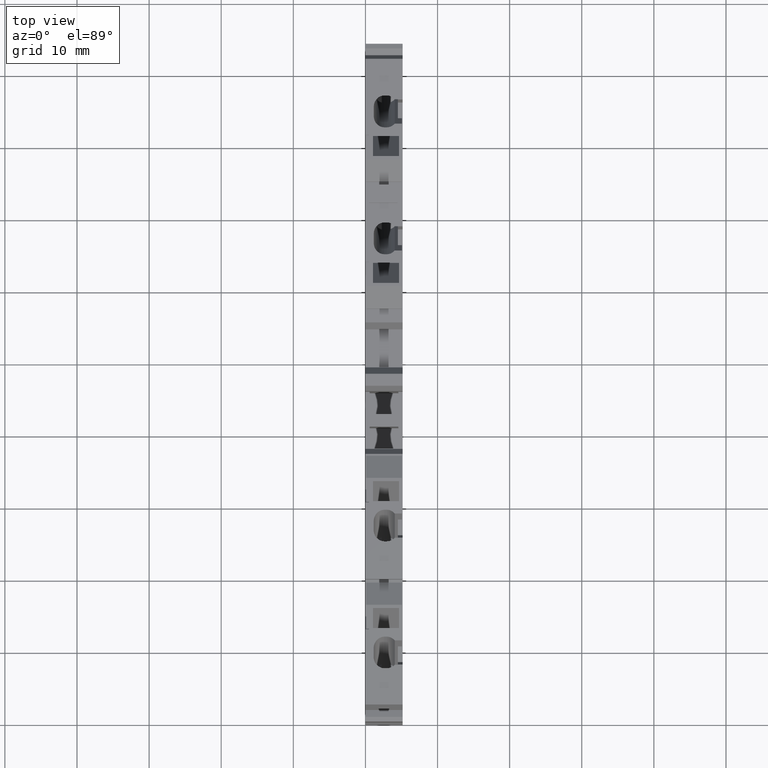
[diagram: clean part render]
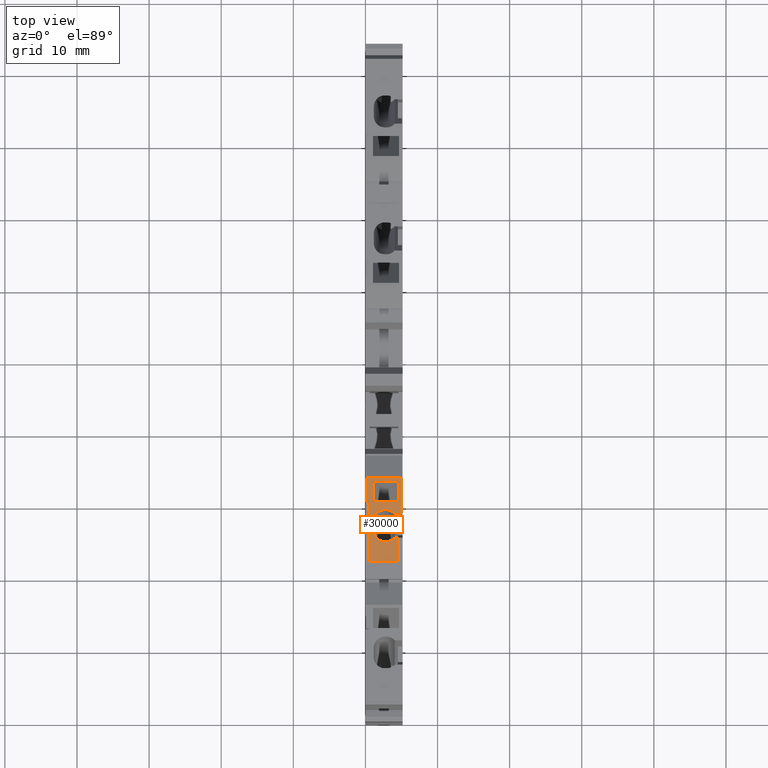
[diagram: same view with one face highlighted and labeled with its STEP entity id]
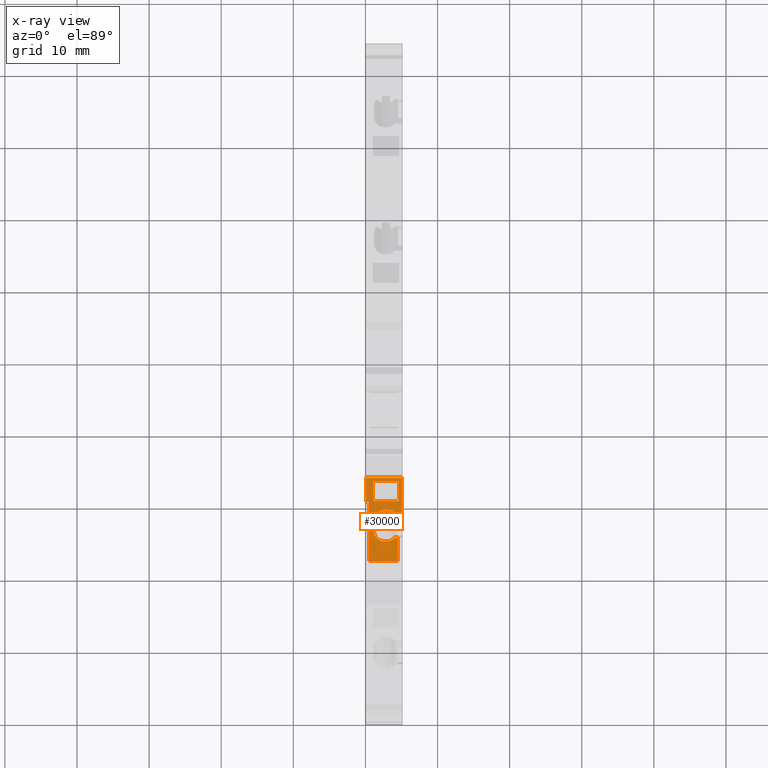
[diagram: x-ray of the same camera — body ghosted, the highlighted face saturated]
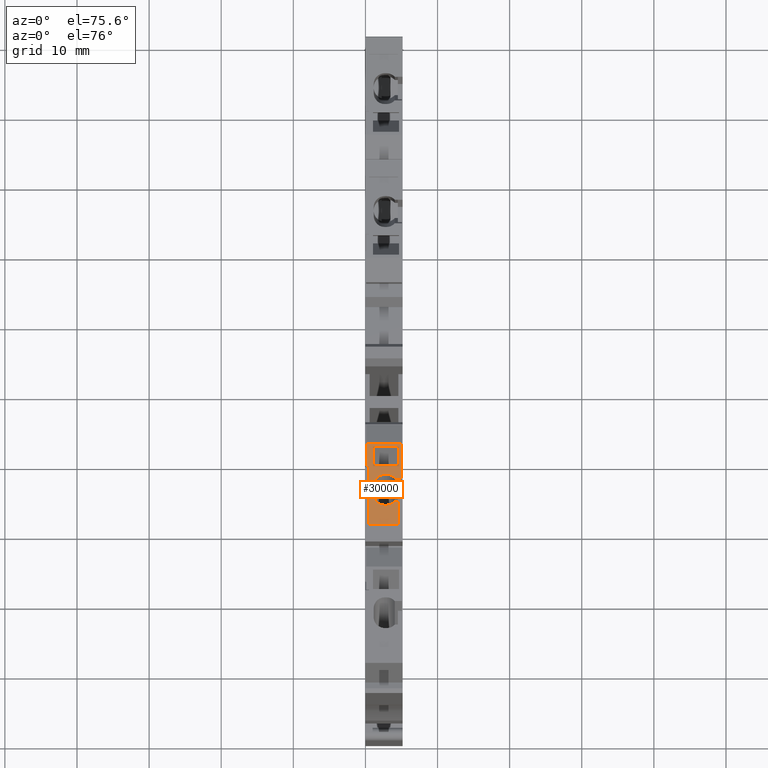
[diagram: same view with one face highlighted and labeled with its STEP entity id]
A machine part, top view. The second image highlights one B-rep face of the part: STEP entity #30000.
The next image is the same camera in x-ray: the body ghosted, the highlighted face saturated — about 0% of this face is hidden behind the body in this view.
A second angle (auxiliary view) of the same face is appended — the face is thin or edge-on in the first view.
In plain terms, the highlighted planar face has unit normal (0, 0, 1).
Its self-contained STEP definition (entity closure, byte-faithful):
#26140=CARTESIAN_POINT('',(11.8583955673308,33.1746136569313,
-4.00000000006407));
#26150=VERTEX_POINT('',#26140);
#26180=CARTESIAN_POINT('',(-1.13147846149601E-12,31.718585764184,
-4.00000000004202));
#26190=DIRECTION('',(-0.992546151641327,-0.12186934340511,
1.84592228757605E-12));
#26200=VECTOR('',#26190,1.);
#26210=LINE('',#26180,#26200);
#26220=CARTESIAN_POINT('',(13.1425937923009,33.3322933720965,
-4.00000000006646));
#26230=VERTEX_POINT('',#26220);
#26240=EDGE_CURVE('',#26230,#26150,#26210,.T.);
#27660=CARTESIAN_POINT('',(14.1862185765723,33.4604343829806,
-0.100000000070755));
#27670=VERTEX_POINT('',#27660);
#27700=CARTESIAN_POINT('',(-1.22843139665029E-12,31.718585764184,
-0.100000000071112));
#27710=DIRECTION('',(-0.992546151641327,-0.12186934340511,
-2.50394313100733E-14));
#27720=VECTOR('',#27710,1.);
#27730=LINE('',#27700,#27720);
#27740=CARTESIAN_POINT('',(19.0899778371893,34.0625403105689,
-0.100000000070631));
#27750=VERTEX_POINT('',#27740);
#27760=EDGE_CURVE('',#27750,#27670,#27730,.T.);
#28020=CARTESIAN_POINT('',(19.0899778371892,34.0625403105688,
-7.06051135417744E-11));
#28030=DIRECTION('',(4.27438783378781E-13,5.23510771281308E-14,-1.));
#28040=VECTOR('',#28030,1.);
#28050=LINE('',#28020,#28040);
#28060=CARTESIAN_POINT('',(19.0899778371914,34.0625403105691,
-5.05000000007063));
#28070=VERTEX_POINT('',#28060);
#28080=EDGE_CURVE('',#27750,#28070,#28050,.T.);
#28330=CARTESIAN_POINT('',(0.00609346716915437,31.7193339478749,
-5.05000000007111));
#28340=DIRECTION('',(0.992546151641327,0.12186934340511,
2.50394313100733E-14));
#28350=VECTOR('',#28340,1.);
#28360=LINE('',#28330,#28350);
#28370=CARTESIAN_POINT('',(15.7882426796901,33.6571382090378,
-5.05000000007072));
#28380=VERTEX_POINT('',#28370);
#28390=EDGE_CURVE('',#28380,#28070,#28360,.T.);
#28590=CARTESIAN_POINT('',(6.85214317504293,32.5599231551753,
-2.30546382926586));
#28600=DIRECTION('',(-0.12186934340511,0.992546151641327,
-1.30823738446753E-16));
#28610=DIRECTION('',(-0.992546151641327,-0.12186934340511,
-2.50394313100733E-14));
#28620=AXIS2_PLACEMENT_3D('',#28590,#28600,#28610);
#28630=PLANE('',#28620);
#28640=CARTESIAN_POINT('',(-1.1289924887993E-12,31.718585764184,
-4.10000000005905));
#28650=DIRECTION('',(-0.992546151641327,-0.12186934340511,
1.64602663199229E-12));
#28660=VECTOR('',#28650,1.);
#28670=LINE('',#28640,#28660);
#28680=CARTESIAN_POINT('',(18.6491029754979,34.008407684263,
-4.10000000008998));
#28690=VERTEX_POINT('',#28680);
#28700=CARTESIAN_POINT('',(15.889379965925,33.669556306319,
-4.1000000000854));
#28710=VERTEX_POINT('',#28700);
#28720=EDGE_CURVE('',#28690,#28710,#28670,.T.);
#28730=ORIENTED_EDGE('',*,*,#28720,.F.);
#28740=CARTESIAN_POINT('',(15.88937996593,33.6695563063196,
-7.06858565383757E-11));
#28750=DIRECTION('',(-1.23247995188567E-12,-1.51461315915757E-13,-1.));
#28760=VECTOR('',#28750,1.);
#28770=LINE('',#28740,#28760);
#28780=CARTESIAN_POINT('',(15.8893799659294,33.6695563063196,
-0.500000000085402));
#28790=VERTEX_POINT('',#28780);
#28800=EDGE_CURVE('',#28790,#28710,#28770,.T.);
#28810=ORIENTED_EDGE('',*,*,#28800,.T.);
#28820=CARTESIAN_POINT('',(-1.21848750586546E-12,31.718585764184,
-0.500000000059052));
#28830=DIRECTION('',(-0.992546151641327,-0.12186934340511,
1.64602663199229E-12));
#28840=VECTOR('',#28830,1.);
#28850=LINE('',#28820,#28840);
#28860=CARTESIAN_POINT('',(18.6491029755043,34.0084076842637,
-0.500000000089979));
#28870=VERTEX_POINT('',#28860);
#28880=EDGE_CURVE('',#28870,#28790,#28850,.T.);
#28890=ORIENTED_EDGE('',*,*,#28880,.T.);
#28900=CARTESIAN_POINT('',(18.6491029755051,34.0084076842639,
-7.06162357004743E-11));
#28910=DIRECTION('',(1.76400487769584E-12,2.16724370540287E-13,1.));
#28920=VECTOR('',#28910,1.);
#28930=LINE('',#28900,#28920);
#28940=EDGE_CURVE('',#28690,#28870,#28930,.T.);
#28950=ORIENTED_EDGE('',*,*,#28940,.T.);
#28960=EDGE_LOOP('',(#28950,#28890,#28810,#28730));
#28970=FACE_BOUND('',#28960,.T.);
#28980=CARTESIAN_POINT('',(7.62606978573189,32.6549493942398,
-7.08943189734057E-11));
#28990=DIRECTION('',(-2.48597269628214E-14,-2.92058445740682E-15,1.));
#29000=VECTOR('',#28990,1.);
#29010=LINE('',#28980,#29000);
#29020=CARTESIAN_POINT('',(7.626069785732,32.6549493942398,
-4.65000000007094));
#29030=VERTEX_POINT('',#29020);
#29040=CARTESIAN_POINT('',(7.62606978573191,32.6549493942398,
-0.650000000070926));
#29050=VERTEX_POINT('',#29040);
#29060=EDGE_CURVE('',#29030,#29050,#29010,.T.);
#29070=ORIENTED_EDGE('',*,*,#29060,.T.);
#29080=CARTESIAN_POINT('',(-1.11531963896945E-12,31.718585764184,
-4.65000000007114));
#29090=DIRECTION('',(-0.992546151641327,-0.12186934340511,
-2.50394313100733E-14));
#29100=VECTOR('',#29090,1.);
#29110=LINE('',#29080,#29100);
#29120=CARTESIAN_POINT('',(15.7882426796901,33.6571382090378,
-4.65000000007074));
#29130=VERTEX_POINT('',#29120);
#29140=EDGE_CURVE('',#29130,#29030,#29110,.T.);
#29150=ORIENTED_EDGE('',*,*,#29140,.T.);
#29160=CARTESIAN_POINT('',(15.78824267969,33.6571382090377,
-7.06884079765405E-11));
#29170=DIRECTION('',(-2.48597269628214E-14,-2.92058445740682E-15,1.));
#29180=VECTOR('',#29170,1.);
#29190=LINE('',#29160,#29180);
#29200=EDGE_CURVE('',#28380,#29130,#29190,.T.);
#29210=ORIENTED_EDGE('',*,*,#29200,.T.);
#29220=ORIENTED_EDGE('',*,*,#28390,.F.);
#29230=ORIENTED_EDGE('',*,*,#28080,.T.);
#29240=ORIENTED_EDGE('',*,*,#27760,.F.);
#29250=CARTESIAN_POINT('',(14.1862185765724,33.4604343829806,
-7.07288229964575E-11));
#29260=DIRECTION('',(-1.2973630734707E-12,-1.59427961509582E-13,-1.));
#29270=VECTOR('',#29260,1.);
#29280=LINE('',#29250,#29270);
#29290=CARTESIAN_POINT('',(14.1862185765786,33.4604343829814,
-1.0819660113651));
#29300=VERTEX_POINT('',#29290);
#29310=EDGE_CURVE('',#27670,#29300,#29280,.T.);
#29320=ORIENTED_EDGE('',*,*,#29310,.F.);
#29330=CARTESIAN_POINT('',(13.1425937923044,33.3322933720969,
-2.20000000010632));
#29340=DIRECTION('',(-0.12186934340511,0.992546151641327,
-1.2671346232575E-16));
#29350=DIRECTION('',(-0.992546151641327,-0.12186934340511,
-1.52341479906993E-12));
#29360=AXIS2_PLACEMENT_3D('',#29330,#29340,#29350);
#29370=ELLIPSE('',#29360,1.57719333635738,1.5);
#29380=CARTESIAN_POINT('',(14.7080309687003,33.5245048884217,
-2.20000000010796));
#29390=VERTEX_POINT('',#29380);
#29400=EDGE_CURVE('',#29300,#29390,#29370,.T.);
#29410=ORIENTED_EDGE('',*,*,#29400,.F.);
#29420=CARTESIAN_POINT('',(14.7080309687031,33.5245048884221,
-7.0715658988388E-11));
#29430=DIRECTION('',(-1.29736307347141E-12,-1.59427961509669E-13,-1.));
#29440=VECTOR('',#29430,1.);
#29450=LINE('',#29420,#29440);
#29460=CARTESIAN_POINT('',(14.7080309686999,33.5245048884217,
-2.50000000006822));
#29470=VERTEX_POINT('',#29460);
#29480=EDGE_CURVE('',#29390,#29470,#29450,.T.);
#29490=ORIENTED_EDGE('',*,*,#29480,.F.);
#29500=CARTESIAN_POINT('',(13.142593792304,33.3322933720969,
-2.50000000006646));
#29510=DIRECTION('',(-0.12186934340511,0.992546151641327,
-1.2671346232575E-16));
#29520=DIRECTION('',(-0.992546151641327,-0.12186934340511,
-7.38480558962352E-13));
#29530=AXIS2_PLACEMENT_3D('',#29500,#29510,#29520);
#29540=ELLIPSE('',#29530,1.57719333635738,1.5);
#29550=EDGE_CURVE('',#29470,#26230,#29540,.T.);
#29560=ORIENTED_EDGE('',*,*,#29550,.F.);
#29570=ORIENTED_EDGE('',*,*,#26240,.F.);
#29580=CARTESIAN_POINT('',(11.8583955673338,33.1746136569317,
-2.50000000006407));
#29590=DIRECTION('',(-0.12186934340511,0.992546151641327,
-1.2671346232575E-16));
#29600=DIRECTION('',(-0.992546151641327,-0.12186934340511,
-2.07362827065381E-12));
#29610=AXIS2_PLACEMENT_3D('',#29580,#29590,#29600);
#29620=ELLIPSE('',#29610,1.53403771873909,1.5);
#29630=CARTESIAN_POINT('',(10.3357923331267,32.9876614873903,
-2.50000000006243));
#29640=VERTEX_POINT('',#29630);
#29650=EDGE_CURVE('',#26150,#29640,#29620,.T.);
#29660=ORIENTED_EDGE('',*,*,#29650,.F.);
#29670=CARTESIAN_POINT('',(10.3357923331297,32.9876614873906,
-7.08259595208173E-11));
#29680=DIRECTION('',(1.20597688032296E-12,1.48207147911352E-13,1.));
#29690=VECTOR('',#29680,1.);
#29700=LINE('',#29670,#29690);
#29710=CARTESIAN_POINT('',(10.335792333127,32.9876614873903,
-2.20000000010339));
#29720=VERTEX_POINT('',#29710);
#29730=EDGE_CURVE('',#29640,#29720,#29700,.T.);
#29740=ORIENTED_EDGE('',*,*,#29730,.F.);
#29750=CARTESIAN_POINT('',(11.8583955673342,33.1746136569317,
-2.20000000010498));
#29760=DIRECTION('',(-0.12186934340511,0.992546151641327,
-1.2671346232575E-16));
#29770=DIRECTION('',(-0.992546151641327,-0.12186934340511,
-2.8461173944163E-12));
#29780=AXIS2_PLACEMENT_3D('',#29750,#29760,#29770);
#29790=ELLIPSE('',#29780,1.53403771873909,1.5);
#29800=CARTESIAN_POINT('',(10.8433267445308,33.0499788772376,
-1.08196601135402));
#29810=VERTEX_POINT('',#29800);
#29820=EDGE_CURVE('',#29720,#29810,#29790,.T.);
#29830=ORIENTED_EDGE('',*,*,#29820,.F.);
#29840=CARTESIAN_POINT('',(10.8433267445321,33.0499788772378,
-7.08131557101222E-11));
#29850=DIRECTION('',(1.20597688032296E-12,1.48207147911351E-13,1.));
#29860=VECTOR('',#29850,1.);
#29870=LINE('',#29840,#29860);
#29880=CARTESIAN_POINT('',(10.8433267445313,33.0499788772377,
-0.650000000070844));
#29890=VERTEX_POINT('',#29880);
#29900=EDGE_CURVE('',#29810,#29890,#29870,.T.);
#29910=ORIENTED_EDGE('',*,*,#29900,.F.);
#29920=CARTESIAN_POINT('',(-1.21475854682074E-12,31.718585764184,
-0.650000000071118));
#29930=DIRECTION('',(0.992546151641327,0.12186934340511,
2.50394313100733E-14));
#29940=VECTOR('',#29930,1.);
#29950=LINE('',#29920,#29940);
#29960=EDGE_CURVE('',#29050,#29890,#29950,.T.);
#29970=ORIENTED_EDGE('',*,*,#29960,.T.);
#29980=EDGE_LOOP('',(#29970,#29910,#29830,#29740,#29660,#29570,#29560,
#29490,#29410,#29320,#29240,#29230,#29220,#29210,#29150,#29070));
#29990=FACE_OUTER_BOUND('',#29980,.T.);
#30000=ADVANCED_FACE('',(#28970,#29990),#28630,.T.);